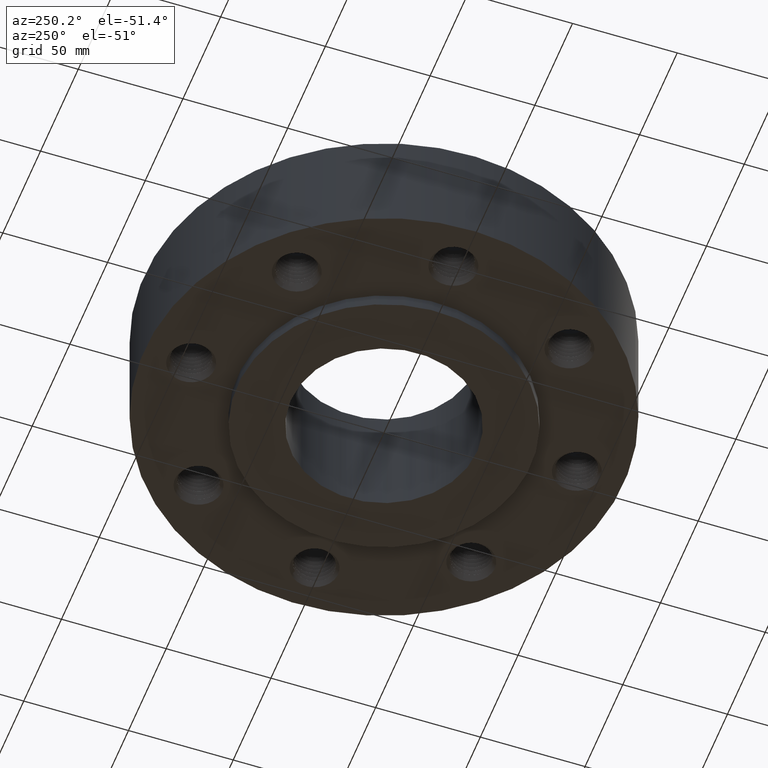
[diagram: clean part render]
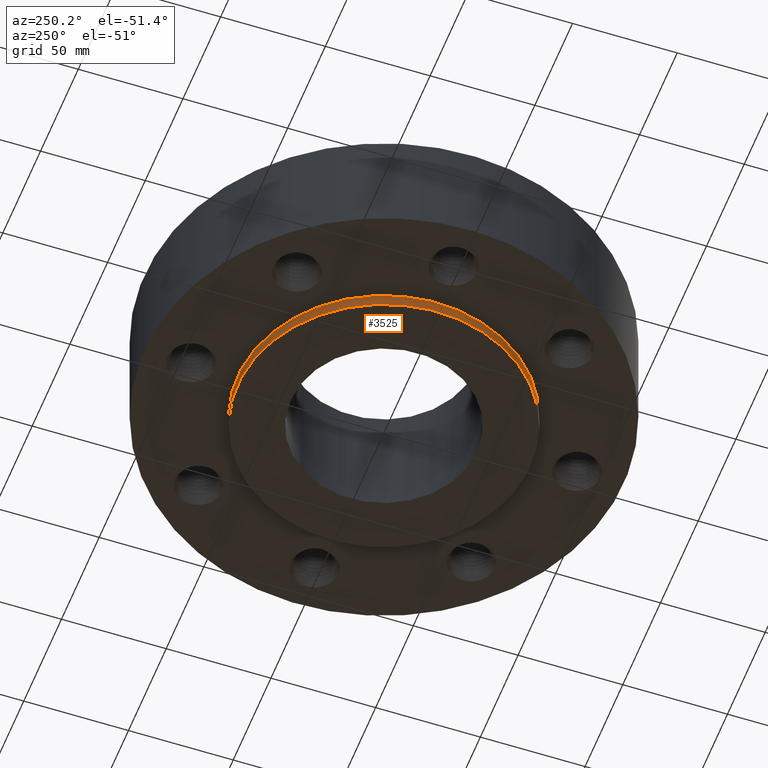
[diagram: same view with one face highlighted and labeled with its STEP entity id]
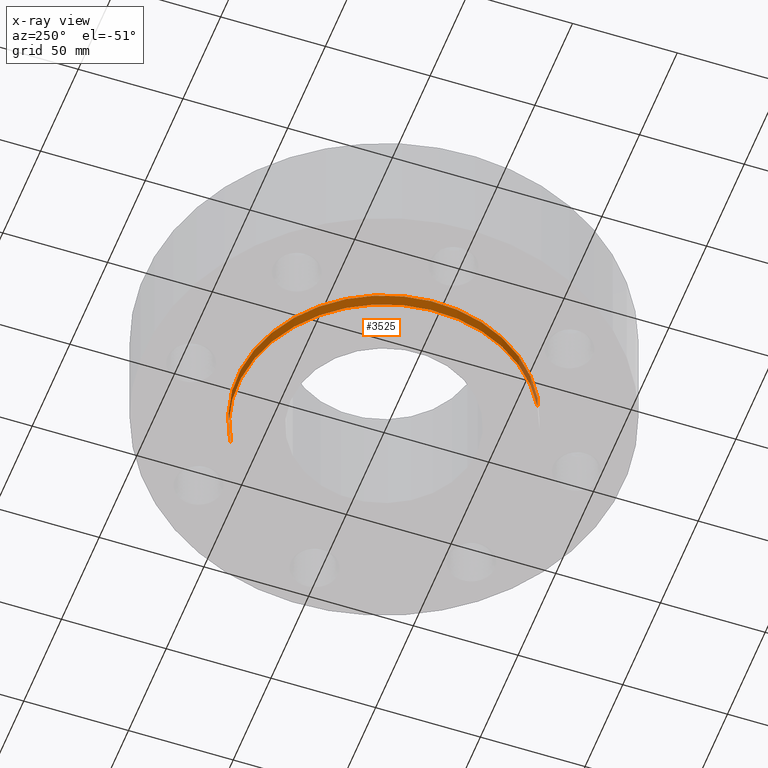
[diagram: x-ray of the same camera — body ghosted, the highlighted face saturated]
A machine part, auxiliary view. The second image highlights one B-rep face of the part: STEP entity #3525.
The next image is the same camera in x-ray: the body ghosted, the highlighted face saturated — about 0% of this face is hidden behind the body in this view.
In plain terms, the highlighted cylindrical surface (partial cylindrical patch) has radius 69.85 mm, axis along (0, 0, -1).
Its self-contained STEP definition (entity closure, byte-faithful):
#3306=AXIS2_PLACEMENT_3D('Circle Axis2P3D',#3304,#3305,$) ;
#3486=AXIS2_PLACEMENT_3D('Cylinder Axis2P3D',#3483,#3484,#3485) ;
#3516=AXIS2_PLACEMENT_3D('Circle Axis2P3D',#3514,#3515,$) ;
#3299=CARTESIAN_POINT('Vertex',(1.31842023117,2.41335204521,-2.85336059242E-014)) ;
#3301=CARTESIAN_POINT('Vertex',(-1.31842023117,-2.41335204521,-2.85336059242E-014)) ;
#3304=CARTESIAN_POINT('Axis2P3D Location',(0.,0.,0.)) ;
#3483=CARTESIAN_POINT('Axis2P3D Location',(0.,0.,0.935000000004)) ;
#3492=CARTESIAN_POINT('Vertex',(1.31842023117,2.41335204521,-0.250000000001)) ;
#3494=CARTESIAN_POINT('Vertex',(-1.31842023117,-2.41335204521,-0.250000000001)) ;
#3497=CARTESIAN_POINT('Line Origine',(1.31842023117,2.41335204521,-0.125000000001)) ;
#3502=CARTESIAN_POINT('Line Origine',(-1.31842023117,-2.41335204521,-0.125000000001)) ;
#3514=CARTESIAN_POINT('Axis2P3D Location',(0.,0.,-0.250000000001)) ;
#3305=DIRECTION('Axis2P3D Direction',(0.,0.,-0.0393700787402)) ;
#3484=DIRECTION('Axis2P3D Direction',(0.,0.,-0.0393700787402)) ;
#3485=DIRECTION('Axis2P3D XDirection',(-0.0188750212049,-0.0345504945626,0.)) ;
#3498=DIRECTION('Vector Direction',(0.,0.,-0.0393700787402)) ;
#3503=DIRECTION('Vector Direction',(0.,0.,-0.0393700787402)) ;
#3515=DIRECTION('Axis2P3D Direction',(0.,0.,-0.0393700787402)) ;
#3499=VECTOR('Line Direction',#3498,0.0393700787402) ;
#3504=VECTOR('Line Direction',#3503,0.0393700787402) ;
#3520=ORIENTED_EDGE('',*,*,#3518,.F.) ;
#3521=ORIENTED_EDGE('',*,*,#3506,.T.) ;
#3522=ORIENTED_EDGE('',*,*,#3308,.T.) ;
#3523=ORIENTED_EDGE('',*,*,#3501,.F.) ;
#3525=ADVANCED_FACE('PartBody',(#3524),#3487,.T.) ;
#3307=CIRCLE('generated circle',#3306,2.75000000001) ;
#3517=CIRCLE('generated circle',#3516,2.75000000001) ;
#3487=CYLINDRICAL_SURFACE('generated cylinder',#3486,2.75000000001) ;
#3308=EDGE_CURVE('',#3302,#3300,#3307,.T.) ;
#3501=EDGE_CURVE('',#3493,#3300,#3500,.F.) ;
#3506=EDGE_CURVE('',#3495,#3302,#3505,.F.) ;
#3518=EDGE_CURVE('',#3495,#3493,#3517,.T.) ;
#3519=EDGE_LOOP('',(#3520,#3521,#3522,#3523)) ;
#3524=FACE_OUTER_BOUND('',#3519,.T.) ;
#3500=LINE('Line',#3497,#3499) ;
#3505=LINE('Line',#3502,#3504) ;
#3300=VERTEX_POINT('',#3299) ;
#3302=VERTEX_POINT('',#3301) ;
#3493=VERTEX_POINT('',#3492) ;
#3495=VERTEX_POINT('',#3494) ;